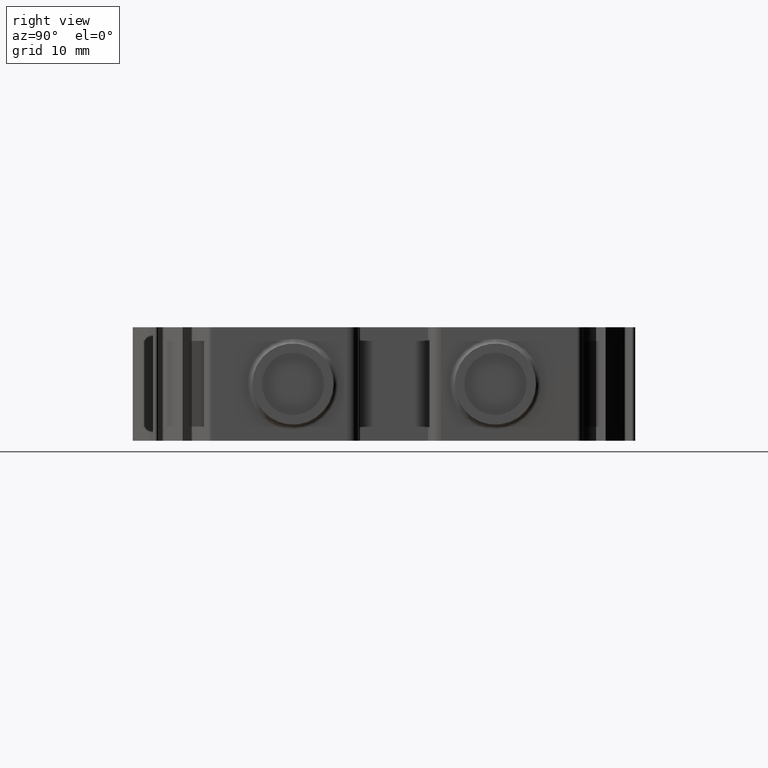
[diagram: clean part render]
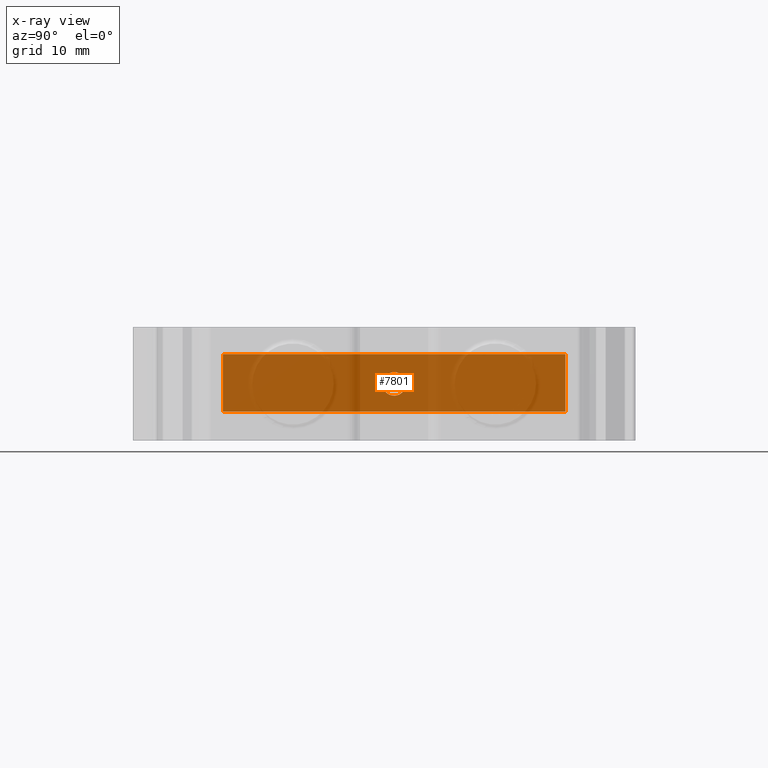
[diagram: x-ray — body ghosted, one internal face saturated and labeled with its STEP entity id]
A machine part, right view, then the same camera in x-ray: the body is ghosted and one INTERNAL B-rep face — a face not visible from any outside direction — is saturated and labeled: STEP entity #7801.
In plain terms, the highlighted planar face has unit normal (-1, -0, -0).
Its self-contained STEP definition (entity closure, byte-faithful):
#9 = CARTESIAN_POINT ( 'NONE',  ( -31.66933832587930198, -57.03747768652149830, -97.34220026078860144 ) ) ;
#801 = CARTESIAN_POINT ( 'NONE',  ( -49.76933832587970130, -57.03747768652169725, -100.4922002607866034 ) ) ;
#978 = DIRECTION ( 'NONE',  ( -2.449289754879850225E-16, 1.000000000000000000, 1.997134251272455080E-14 ) ) ;
#1595 = ORIENTED_EDGE ( 'NONE', *, *, #10381, .T. ) ;
#1640 = DIRECTION ( 'NONE',  ( 4.845300629564859542E-15, -1.000000000000000000, -1.997134251272455080E-14 ) ) ;
#1712 = VERTEX_POINT ( 'NONE', #7504 ) ;
#2064 = DIRECTION ( 'NONE',  ( 1.054711873393921180E-13, -2.220446049250360413E-14, 1.000000000000000000 ) ) ;
#2702 = VECTOR ( 'NONE', #9107, 1000.000000000000000 ) ;
#2710 = LINE ( 'NONE', #14882, #14213 ) ;
#4290 = AXIS2_PLACEMENT_3D ( 'NONE', #13980, #1640, #7117 ) ;
#4313 = VERTEX_POINT ( 'NONE', #8692 ) ;
#4459 = CARTESIAN_POINT ( 'NONE',  ( -31.66933832587995212, -57.03747768652149830, -103.4422002607888089 ) ) ;
#4682 = VERTEX_POINT ( 'NONE', #4459 ) ;
#5446 = CARTESIAN_POINT ( 'NONE',  ( -67.86933832587929771, -57.03747768652169725, -97.34220026078470767 ) ) ;
#6536 = EDGE_CURVE ( 'NONE', #17139, #4682, #15885, .T. ) ;
#7117 = DIRECTION ( 'NONE',  ( 1.000000000000000000, 4.845300629567000510E-15, -1.072197895510800055E-13 ) ) ;
#7504 = CARTESIAN_POINT ( 'NONE',  ( -67.86933832587929771, -57.03747768652169725, -97.34220026078470767 ) ) ;
#7801 = ADVANCED_FACE ( 'NONE', ( #16702, #15334 ), #8466, .F. ) ;
#7826 = LINE ( 'NONE', #17492, #9268 ) ;
#8159 = CIRCLE ( 'NONE', #16540, 1.249999999999973355 ) ;
#8278 = DIRECTION ( 'NONE',  ( -1.000000000000000000, -4.845300629567000510E-15, 1.072197895510800055E-13 ) ) ;
#8409 = ORIENTED_EDGE ( 'NONE', *, *, #12726, .F. ) ;
#8466 = PLANE ( 'NONE',  #4290 ) ;
#8692 = CARTESIAN_POINT ( 'NONE',  ( -49.76933832587956630, -57.03747768652172567, -99.24220026078663182 ) ) ;
#8806 = VERTEX_POINT ( 'NONE', #13261 ) ;
#9107 = DIRECTION ( 'NONE',  ( -1.072197915791130041E-13, 1.997134251272455080E-14, -1.000000000000000000 ) ) ;
#9268 = VECTOR ( 'NONE', #17401, 1000.000000000000000 ) ;
#9441 = DIRECTION ( 'NONE',  ( -2.449289754879850225E-16, 1.000000000000000000, 1.997134251272455080E-14 ) ) ;
#9497 = LINE ( 'NONE', #5446, #10208 ) ;
#10208 = VECTOR ( 'NONE', #14719, 1000.000000000000000 ) ;
#10381 = EDGE_CURVE ( 'NONE', #4682, #17008, #7826, .T. ) ;
#11530 = EDGE_CURVE ( 'NONE', #17139, #1712, #2710, .T. ) ;
#11631 = CARTESIAN_POINT ( 'NONE',  ( -31.66933832587930198, -57.03747768652149830, -97.34220026078860144 ) ) ;
#11707 = ORIENTED_EDGE ( 'NONE', *, *, #11530, .F. ) ;
#11827 = EDGE_CURVE ( 'NONE', #4313, #8806, #13068, .T. ) ;
#12140 = CARTESIAN_POINT ( 'NONE',  ( -49.76933832587970130, -57.03747768652169725, -100.4922002607866034 ) ) ;
#12401 = EDGE_LOOP ( 'NONE', ( #1595, #8409, #11707, #13882 ) ) ;
#12648 = EDGE_LOOP ( 'NONE', ( #12854, #15292 ) ) ;
#12726 = EDGE_CURVE ( 'NONE', #1712, #17008, #9497, .T. ) ;
#12854 = ORIENTED_EDGE ( 'NONE', *, *, #11827, .F. ) ;
#13068 = CIRCLE ( 'NONE', #15389, 1.249999999999973355 ) ;
#13261 = CARTESIAN_POINT ( 'NONE',  ( -49.76933832587983630, -57.03747768652166883, -101.7422002607865750 ) ) ;
#13882 = ORIENTED_EDGE ( 'NONE', *, *, #6536, .T. ) ;
#13980 = CARTESIAN_POINT ( 'NONE',  ( -67.86933832587929771, -57.03747768652169725, -97.34220026078470767 ) ) ;
#14213 = VECTOR ( 'NONE', #8278, 1000.000000000000000 ) ;
#14719 = DIRECTION ( 'NONE',  ( -1.072197915791130041E-13, 1.997134251272455080E-14, -1.000000000000000000 ) ) ;
#14882 = CARTESIAN_POINT ( 'NONE',  ( -67.86933832587929771, -57.03747768652169725, -97.34220026078470767 ) ) ;
#15292 = ORIENTED_EDGE ( 'NONE', *, *, #17446, .F. ) ;
#15334 = FACE_OUTER_BOUND ( 'NONE', #12401, .T. ) ;
#15389 = AXIS2_PLACEMENT_3D ( 'NONE', #801, #978, #2064 ) ;
#15885 = LINE ( 'NONE', #11631, #2702 ) ;
#15965 = CARTESIAN_POINT ( 'NONE',  ( -67.86933832588000826, -57.03747768652169725, -103.4422002607850004 ) ) ;
#16540 = AXIS2_PLACEMENT_3D ( 'NONE', #12140, #9441, #17644 ) ;
#16702 = FACE_BOUND ( 'NONE', #12648, .T. ) ;
#17008 = VERTEX_POINT ( 'NONE', #15965 ) ;
#17139 = VERTEX_POINT ( 'NONE', #9 ) ;
#17401 = DIRECTION ( 'NONE',  ( -1.000000000000000000, -4.845300629567000510E-15, 1.072197895510800055E-13 ) ) ;
#17446 = EDGE_CURVE ( 'NONE', #8806, #4313, #8159, .T. ) ;
#17492 = CARTESIAN_POINT ( 'NONE',  ( -67.86933832588000826, -57.03747768652169725, -103.4422002607850004 ) ) ;
#17644 = DIRECTION ( 'NONE',  ( 1.054711873393921180E-13, -2.220446049250360413E-14, 1.000000000000000000 ) ) ;